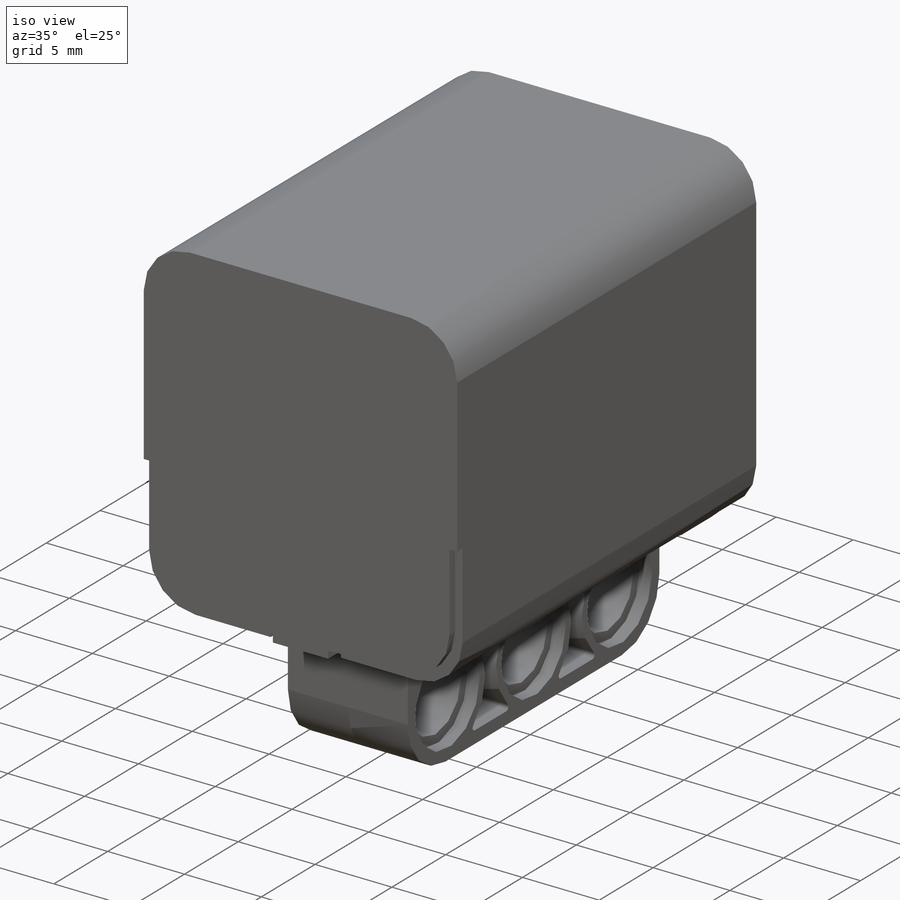
[diagram: iso view]
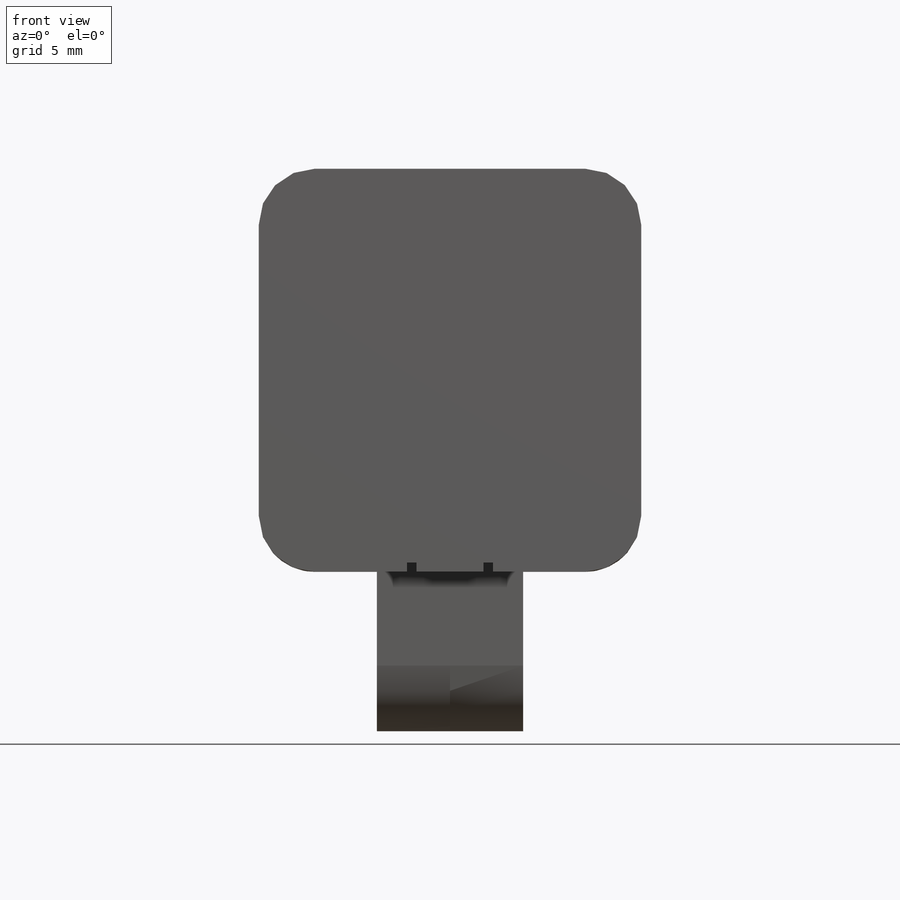
[diagram: front view]
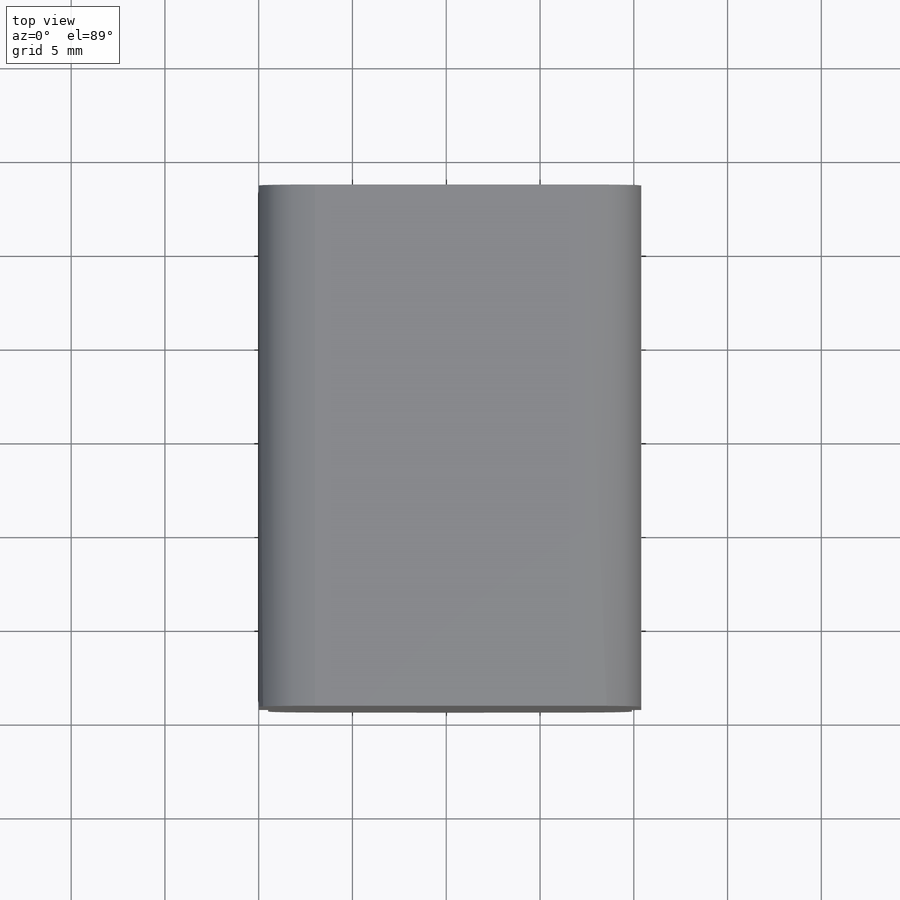
[diagram: top view]
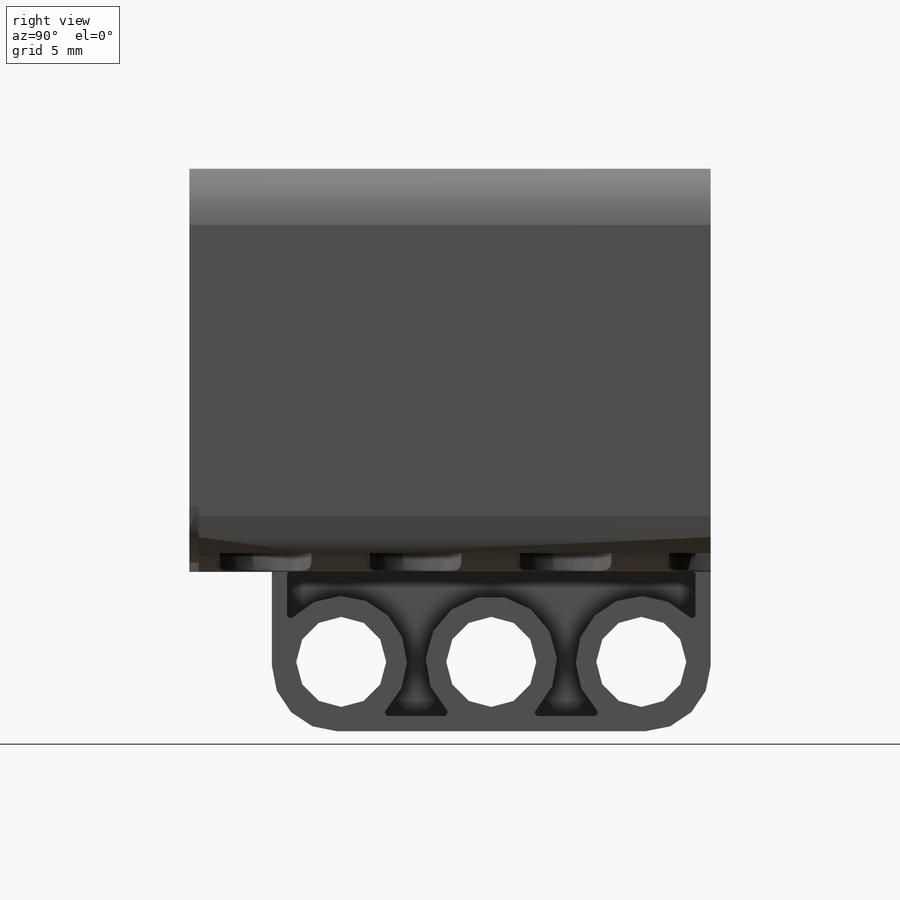
[diagram: right view]
SOLIDWORKS PART (.sldprt)
format: sldprt  version: not decoded by parser v0  size: 663,552 bytes
history: native  units: mm
features: sketch x11, cut_extrude x9, fillet x5, plane x4, mirror x3, extrude x2, pattern_linear x2, material x1 (+11 scaffold rows collapsed)
feature tree (48):
  scaffold x11  (default folders/planes/origin — collapsed)
  material  "PVC Rigid"
  plane  "Body alignment"  Offset=6mm
  plane  "Vertical center"  Offset=10.2mm
  plane  "Horizontal plane"  Offset=10.75mm
  sketch  "Sketch1"  dims[D1=20.4mm D2=21.5mm]
  extrude  "Extrude1"  Depth=43.3mm
  sketch  "Sketch7"  dims[c1.D1=0.5mm c1.D2=15.5mm c2.D1=5.0mm]
  cut_extrude  "Extrude6"  Depth=0.5mm
  sketch  "Sketch8"
  cut_extrude  "Extrude7"  Depth=0.5mm
  mirror  "Mirror2"
  fillet  "Fillet4"  Radius=3mm
  sketch  "Sketch2"  dims[D1=23.4mm D2=8.5mm]
  extrude  "Extrude2"  Depth=3.9mm
  sketch  "Sketch3"  dims[D1=4.8mm D2=11.7mm D3=3.7mm]
  cut_extrude  "Extrude3"  [1 undecoded]
  sketch  "Sketch4"  dims[D1=6.0mm]
  cut_extrude  "Extrude4"  Depth=0.8mm
  pattern_linear  "LPattern1"  Count1=2 Count2=2 Spacing1=8mm Spacing2=8mm
  fillet  "Fillet2"  Radius=3.5mm
  sketch  "Sketch5"  dims[D1=7.0mm D2=0.8mm D3=0.8mm D4=0.8mm]
  cut_extrude  "Extrude5"  Depth=3.3mm
  fillet  "Fillet3"  Radius=0.2mm
  mirror  "Mirror1"
  sketch  "Sketch9"  dims[D1=5.0mm D2=4.0mm D3=5.0mm]
  cut_extrude  "Extrude8"  Depth=1mm
  fillet  "Fillet5"  Radius=0.1mm
  pattern_linear  "LPattern2"  Count1=4 Count2=1 Spacing1=8mm Spacing2=10mm
  mirror  "Mirror8"
  sketch  "Sketch10"  dims[D1=13.0mm D2=15.0mm D3=0.5mm]
  cut_extrude  "Extrude9"  Depth=20mm
  sketch  "Sketch11"  dims[c1.D1=12.0mm c1.D2=10.75mm c1.D3=2.0mm c1.D4=9.75mm c1.D5=2.0mm c1.D6=2.0mm c1.D7=9.2mm c2.D6=2.0mm c2.D8=2.0mm c2.D9=2.0mm c2.D10=2.0mm]
  cut_extrude  "Extrude10"  Depth=10mm
  fillet  "Fillet8"  Radius=3mm
  plane  "Plane1"  Offset=15.5mm
  sketch  "Sketch12"
  cut_extrude  "Extrude12"  [1 undecoded]
decode coverage: 25 of 32 modeling features carry decoded parameters
note: 2 parameter values undecoded
note: suppression state not decoded; provenance and decode notes live in map.json
